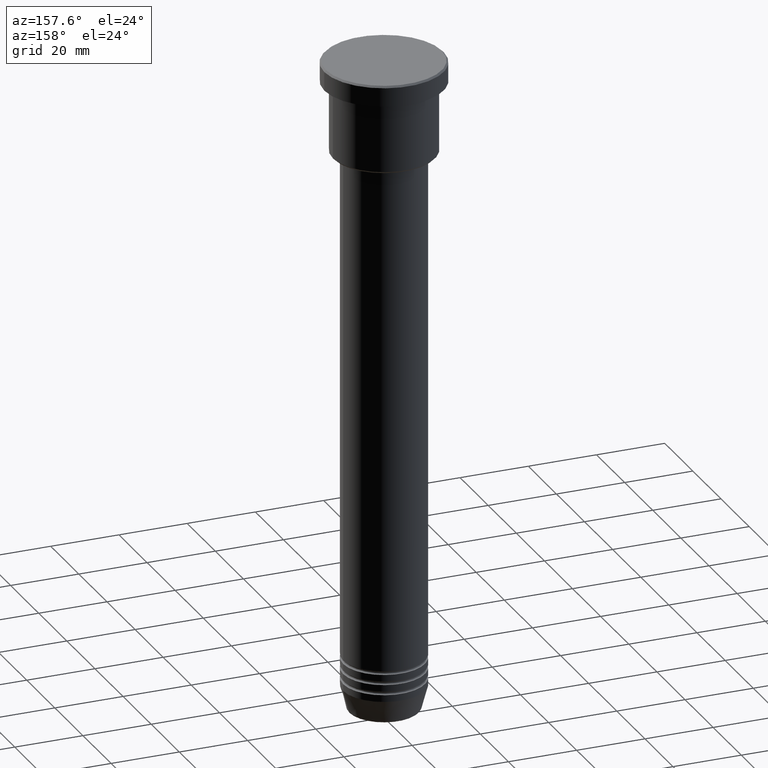
[diagram: clean part render]
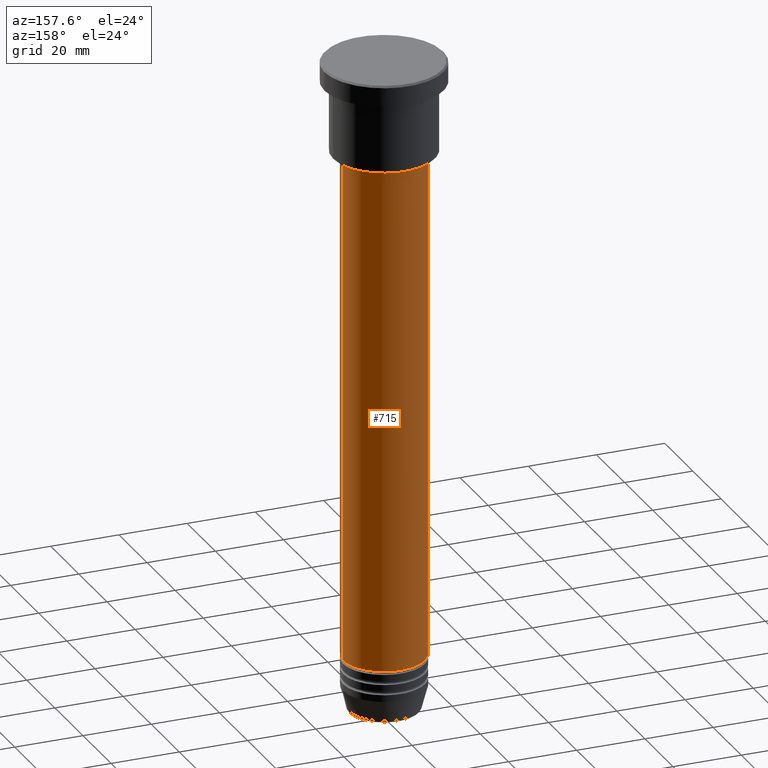
[diagram: same view with one face highlighted and labeled with its STEP entity id]
A machine part, auxiliary view. The second image highlights one B-rep face of the part: STEP entity #715.
In plain terms, the highlighted cylindrical surface (partial cylindrical patch) has radius 12 mm, axis along (-0, -0, 1).
Its self-contained STEP definition (entity closure, byte-faithful):
#20 = VERTEX_POINT ( 'NONE', #910 ) ;
#36 = EDGE_CURVE ( 'NONE', #20, #713, #161, .T. ) ;
#44 = EDGE_LOOP ( 'NONE', ( #176, #973, #821, #1166 ) ) ;
#105 = VECTOR ( 'NONE', #810, 1000.000000000000000 ) ;
#161 = LINE ( 'NONE', #1095, #105 ) ;
#176 = ORIENTED_EDGE ( 'NONE', *, *, #998, .T. ) ;
#178 = CARTESIAN_POINT ( 'NONE',  ( -12.00000000000000000, 1.469576158976823947E-15, 0.000000000000000000 ) ) ;
#272 = DIRECTION ( 'NONE',  ( 1.000000000000000000, 0.000000000000000000, 0.000000000000000000 ) ) ;
#320 = VECTOR ( 'NONE', #835, 1000.000000000000000 ) ;
#357 = CARTESIAN_POINT ( 'NONE',  ( -12.00000000000000000, 1.469576158976823947E-15, -28.00000000000000355 ) ) ;
#366 = DIRECTION ( 'NONE',  ( -0.000000000000000000, -0.000000000000000000, 1.000000000000000000 ) ) ;
#387 = VERTEX_POINT ( 'NONE', #357 ) ;
#410 = DIRECTION ( 'NONE',  ( -0.000000000000000000, -0.000000000000000000, 1.000000000000000000 ) ) ;
#557 = AXIS2_PLACEMENT_3D ( 'NONE', #930, #366, #272 ) ;
#568 = LINE ( 'NONE', #178, #320 ) ;
#577 = AXIS2_PLACEMENT_3D ( 'NONE', #776, #410, #586 ) ;
#586 = DIRECTION ( 'NONE',  ( 1.000000000000000000, 0.000000000000000000, 0.000000000000000000 ) ) ;
#593 = EDGE_CURVE ( 'NONE', #713, #387, #690, .T. ) ;
#597 = AXIS2_PLACEMENT_3D ( 'NONE', #1114, #651, #1014 ) ;
#616 = CARTESIAN_POINT ( 'NONE',  ( -12.00000000000000000, 1.469576158976823947E-15, -176.0000000000000000 ) ) ;
#651 = DIRECTION ( 'NONE',  ( -0.000000000000000000, -0.000000000000000000, 1.000000000000000000 ) ) ;
#690 = CIRCLE ( 'NONE', #597, 12.00000000000000000 ) ;
#713 = VERTEX_POINT ( 'NONE', #941 ) ;
#715 = ADVANCED_FACE ( 'NONE', ( #1053 ), #792, .T. ) ;
#776 = CARTESIAN_POINT ( 'NONE',  ( 0.000000000000000000, 0.000000000000000000, 0.000000000000000000 ) ) ;
#789 = CIRCLE ( 'NONE', #557, 12.00000000000000000 ) ;
#792 = CYLINDRICAL_SURFACE ( 'NONE', #577, 12.00000000000000000 ) ;
#810 = DIRECTION ( 'NONE',  ( -0.000000000000000000, -0.000000000000000000, 1.000000000000000000 ) ) ;
#821 = ORIENTED_EDGE ( 'NONE', *, *, #593, .F. ) ;
#835 = DIRECTION ( 'NONE',  ( -0.000000000000000000, -0.000000000000000000, 1.000000000000000000 ) ) ;
#910 = CARTESIAN_POINT ( 'NONE',  ( 12.00000000000000000, 0.000000000000000000, -176.0000000000000000 ) ) ;
#912 = VERTEX_POINT ( 'NONE', #616 ) ;
#930 = CARTESIAN_POINT ( 'NONE',  ( 0.000000000000000000, 0.000000000000000000, -176.0000000000000000 ) ) ;
#941 = CARTESIAN_POINT ( 'NONE',  ( 12.00000000000000000, 0.000000000000000000, -28.00000000000000355 ) ) ;
#959 = EDGE_CURVE ( 'NONE', #912, #387, #568, .T. ) ;
#973 = ORIENTED_EDGE ( 'NONE', *, *, #959, .T. ) ;
#998 = EDGE_CURVE ( 'NONE', #20, #912, #789, .T. ) ;
#1014 = DIRECTION ( 'NONE',  ( 1.000000000000000000, 0.000000000000000000, 0.000000000000000000 ) ) ;
#1053 = FACE_OUTER_BOUND ( 'NONE', #44, .T. ) ;
#1095 = CARTESIAN_POINT ( 'NONE',  ( 12.00000000000000000, 0.000000000000000000, 0.000000000000000000 ) ) ;
#1114 = CARTESIAN_POINT ( 'NONE',  ( 0.000000000000000000, 0.000000000000000000, -28.00000000000000355 ) ) ;
#1166 = ORIENTED_EDGE ( 'NONE', *, *, #36, .F. ) ;